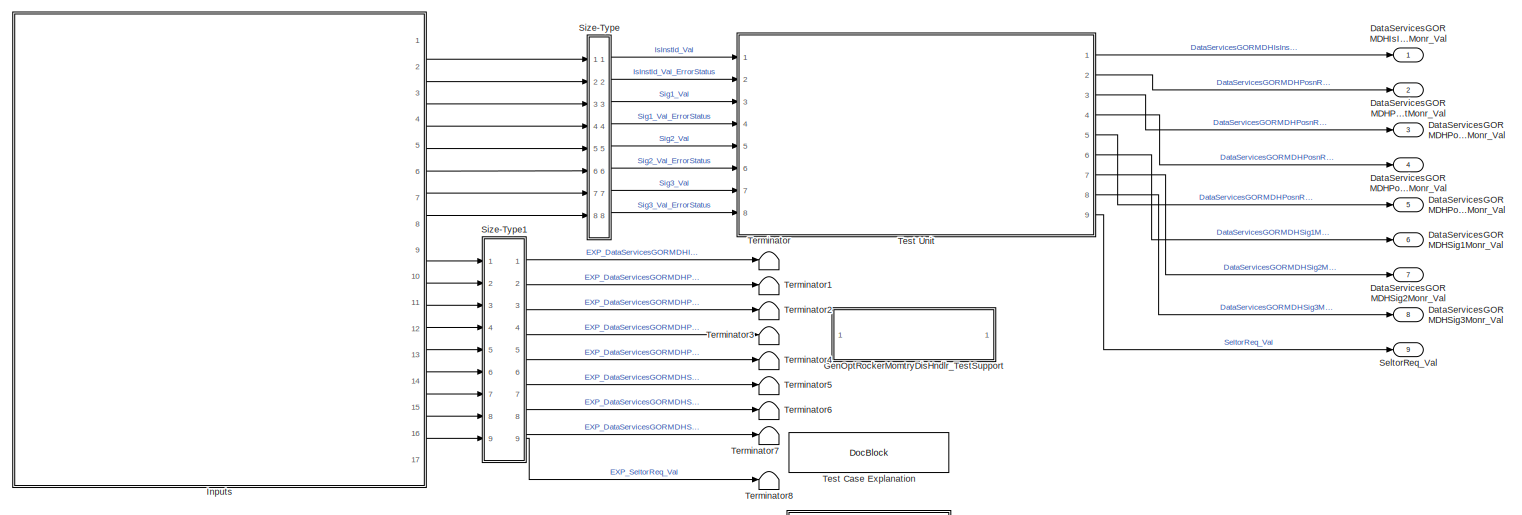
[diagram: root canvas - part 1/2, full width, top band]
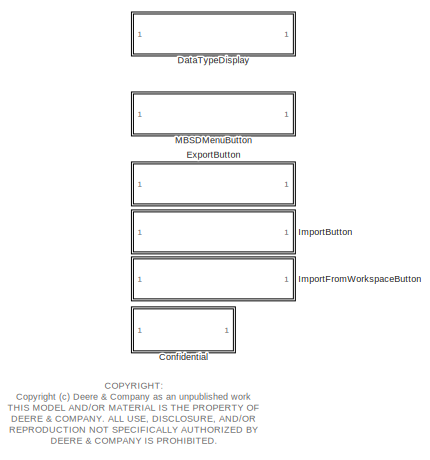
[diagram: root canvas - part 2/2, bottom center region]
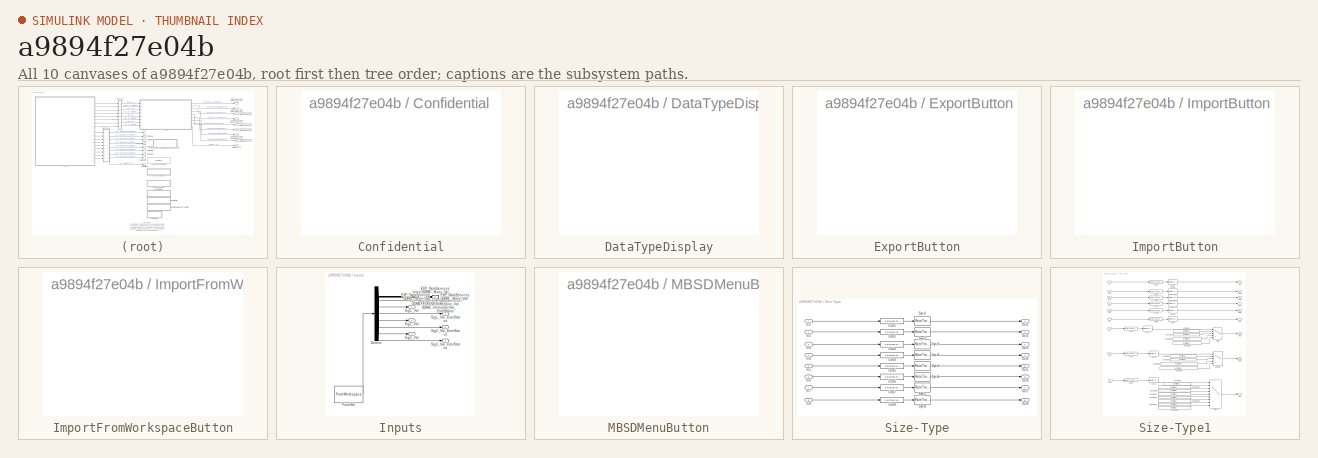
[diagram: thumbnail index - all 10 canvases of the model, root first then tree order]
MODEL slx_a9894f27e04b
KIND model
CONFIG AbsTol = auto
CONFIG EnableMultiTasking = off
CONFIG FixedStep = SAMPLE_TIME_CONFIGSET_0p01_S
CONFIG MaxStep = auto
CONFIG MinStep = auto
CONFIG RelTol = 1e-3
CONFIG SampleTimeConstraint = Unconstrained
CONFIG Solver = FixedStepDiscrete
CONFIG SolverName = FixedStepDiscrete
CONFIG StartTime = 0.0
CONFIG StopTime = inf
BLOCK [SubSystem] Confidential
  Ports = []
  RequestExecContextInheritance = off
  Variant = off
BLOCK [Outport] DataServicesGORMDHIsInstldMonr_Val
  IconDisplay = Port number
  OutDataTypeStr = Enum: DiagBool
  PortDimensions = 1
  SamplingMode = Sample based
  SignalType = real
BLOCK [Outport] DataServicesGORMDHPosnReqSeldStMonr_Val
  IconDisplay = Port number
  OutDataTypeStr = Enum: EnCtrlDisSt
  Port = 2
  PortDimensions = 1
  SamplingMode = Sample based
  SignalType = real
BLOCK [Outport] DataServicesGORMDHPosnReqSelnMonr_Val
  IconDisplay = Port number
  OutDataTypeStr = Enum: EnCtrlSeln
  Port = 3
  PortDimensions = 1
  SamplingMode = Sample based
  SignalType = real
BLOCK [Outport] DataServicesGORMDHPosnReqStsMonr_Val
  IconDisplay = Port number
  OutDataTypeStr = Enum: EnCtrlSts
  Port = 4
  PortDimensions = 1
  SamplingMode = Sample based
  SignalType = real
BLOCK [Outport] DataServicesGORMDHPosnReqTransMonr_Val
  IconDisplay = Port number
  OutDataTypeStr = CntAbsMod
  Port = 5
  PortDimensions = 1
  SamplingMode = Sample based
  SignalType = real
BLOCK [Outport] DataServicesGORMDHSig1Monr_Val
  IconDisplay = Port number
  OutDataTypeStr = Enum: DiagBool
  Port = 6
  PortDimensions = 1
  SamplingMode = Sample based
  SignalType = real
BLOCK [Outport] DataServicesGORMDHSig2Monr_Val
  IconDisplay = Port number
  OutDataTypeStr = Enum: DiagBool
  Port = 7
  PortDimensions = 1
  SamplingMode = Sample based
  SignalType = real
BLOCK [Outport] DataServicesGORMDHSig3Monr_Val
  IconDisplay = Port number
  OutDataTypeStr = Enum: DiagBool
  Port = 8
  PortDimensions = 1
  SamplingMode = Sample based
  SignalType = real
BLOCK [SubSystem] DataTypeDisplay
  LoadFcn = set_param(gcb,'AttributesFormatString','');
  OpenFcn = set_param(gcb,'AttributesFormatString',findModelIDT(gcs));
  Ports = []
  RequestExecContextInheritance = off
  StartFcn = set_param(gcb,'AttributesFormatString','');
  Variant = off
BLOCK [SubSystem] ExportButton
  LoadFcn = set_param(gcb,'AttributesFormatString','');
  OpenFcn = JD.Model.AddImportExportSwitch.PerformExport(gcs)
  Ports = []
  RequestExecContextInheritance = off
  StartFcn = set_param(gcb,'AttributesFormatString','');
  Variant = off
BLOCK [ModelReference] GenOptRockerMomtryDisHndlr_TestSupport
  ModelNameDialog = GenOptRockerMomtryDisHndlr_TestSupport
  ModelReferenceVersion = 1.1
  Ports = []
  Variant = off
BLOCK [SubSystem] ImportButton
  LoadFcn = set_param(gcb,'AttributesFormatString','');
  OpenFcn = JD.Model.AddImportExportSwitch.PerformImport(gcs)
  Ports = []
  RequestExecContextInheritance = off
  StartFcn = set_param(gcb,'AttributesFormatString','');
  Variant = off
BLOCK [SubSystem] ImportFromWorkspaceButton
  LoadFcn = set_param(gcb,'AttributesFormatString','');
  OpenFcn = JD.Model.AddImportExportSwitch.PerformImportfromWorkspace(gcs)
  Ports = []
  RequestExecContextInheritance = off
  StartFcn = set_param(gcb,'AttributesFormatString','');
  Variant = off
BLOCK [SubSystem] Inputs
  ClipboardFcn = sigbuilder_block('clipboard');
  CloseFcn = sigbuilder_block('close');
  ContinueFcn = sigbuilder_block('continue');
  CopyFcn = sigbuilder_block('copy');
  DeleteFcn = sigbuilder_block('delete');
  LoadFcn = sigbuilder_block('load');
  MaskHideContents = on
  ModelCloseFcn = sigbuilder_block('modelClose');
  NameChangeFcn = sigbuilder_block('namechange');
  OpenFcn = sigbuilder_block('open',[360.75 33 681.75 578.25 ]);
  PauseFcn = sigbuilder_block('pause');
  Ports = [0, 17]
  PreSaveFcn = sigbuilder_block('preSave');
  RequestExecContextInheritance = off
  StartFcn = sigbuilder_block('start');
  StopFcn = sigbuilder_block('stop');
  Tag = STV Subsys
  Variant = off
BLOCK [Demux] Inputs/Demux
  Outputs = 17
  Ports = [1, 17]
  Tag = STV Demux
BLOCK [Outport] Inputs/EXP_DataServicesGORMDHIsInstldMonr_Val
  IconDisplay = Port number
  Port = 9
  Tag = STV Outport
BLOCK [Outport] Inputs/EXP_DataServicesGORMDHPosnReqSeldStMonr_Val
  IconDisplay = Port number
  Port = 10
  Tag = STV Outport
BLOCK [Outport] Inputs/EXP_DataServicesGORMDHPosnReqSelnMonr_Val
  IconDisplay = Port number
  Port = 11
  Tag = STV Outport
BLOCK [Outport] Inputs/EXP_DataServicesGORMDHPosnReqStsMonr_Val
  IconDisplay = Port number
  Port = 12
  Tag = STV Outport
BLOCK [Outport] Inputs/EXP_DataServicesGORMDHPosnReqTransMonr_Val
  IconDisplay = Port number
  Port = 13
  Tag = STV Outport
BLOCK [Outport] Inputs/EXP_DataServicesGORMDHSig1Monr_Val
  IconDisplay = Port number
  Port = 14
  Tag = STV Outport
BLOCK [Outport] Inputs/EXP_DataServicesGORMDHSig2Monr_Val
  IconDisplay = Port number
  Port = 15
  Tag = STV Outport
BLOCK [Outport] Inputs/EXP_DataServicesGORMDHSig3Monr_Val
  IconDisplay = Port number
  Port = 16
  Tag = STV Outport
BLOCK [Outport] Inputs/EXP_SeltorReq_Val
  IconDisplay = Port number
  Port = 17
  Tag = STV Outport
BLOCK [FromWorkspace] Inputs/FromWs
  SampleTime = 0
  Tag = STV FromWs
  VariableName = tuvar
BLOCK [Outport] Inputs/IsInstld_Val
  IconDisplay = Port number
  Tag = STV Outport
BLOCK [Outport] Inputs/IsInstld_Val_ErrorStatus
  IconDisplay = Port number
  Port = 2
  Tag = STV Outport
BLOCK [Outport] Inputs/Sig1_Val
  IconDisplay = Port number
  Port = 3
  Tag = STV Outport
BLOCK [Outport] Inputs/Sig1_Val_ErrorStatus
  IconDisplay = Port number
  Port = 4
  Tag = STV Outport
BLOCK [Outport] Inputs/Sig2_Val
  IconDisplay = Port number
  Port = 5
  Tag = STV Outport
BLOCK [Outport] Inputs/Sig2_Val_ErrorStatus
  IconDisplay = Port number
  Port = 6
  Tag = STV Outport
BLOCK [Outport] Inputs/Sig3_Val
  IconDisplay = Port number
  Port = 7
  Tag = STV Outport
BLOCK [Outport] Inputs/Sig3_Val_ErrorStatus
  IconDisplay = Port number
  Port = 8
  Tag = STV Outport
BLOCK [SubSystem] MBSDMenuButton
  OpenFcn = JD_MBSDMenu
  Ports = []
  RequestExecContextInheritance = off
  Variant = off
BLOCK [Outport] SeltorReq_Val
  BusOutputAsStruct = on
  IconDisplay = Port number
  OutDataTypeStr = Bus: RecCtrlSelr
  Port = 9
  PortDimensions = 1
  SamplingMode = Sample based
  SignalType = real
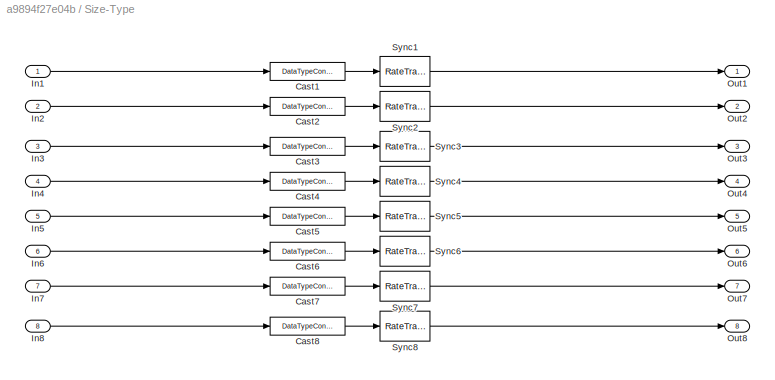
BLOCK [SubSystem] Size-Type
  Ports = [8, 8]
  RequestExecContextInheritance = off
  Variant = off
BLOCK [DataTypeConversion] Size-Type/Cast1
  RndMeth = Nearest
BLOCK [DataTypeConversion] Size-Type/Cast2
  RndMeth = Nearest
BLOCK [DataTypeConversion] Size-Type/Cast3
  RndMeth = Nearest
BLOCK [DataTypeConversion] Size-Type/Cast4
  RndMeth = Nearest
BLOCK [DataTypeConversion] Size-Type/Cast5
  RndMeth = Nearest
BLOCK [DataTypeConversion] Size-Type/Cast6
  RndMeth = Nearest
BLOCK [DataTypeConversion] Size-Type/Cast7
  RndMeth = Nearest
BLOCK [DataTypeConversion] Size-Type/Cast8
  RndMeth = Nearest
BLOCK [Inport] Size-Type/In1
  IconDisplay = Port number
BLOCK [Inport] Size-Type/In2
  IconDisplay = Port number
  Port = 2
BLOCK [Inport] Size-Type/In3
  IconDisplay = Port number
  Port = 3
BLOCK [Inport] Size-Type/In4
  IconDisplay = Port number
  Port = 4
BLOCK [Inport] Size-Type/In5
  IconDisplay = Port number
  Port = 5
BLOCK [Inport] Size-Type/In6
  IconDisplay = Port number
  Port = 6
BLOCK [Inport] Size-Type/In7
  IconDisplay = Port number
  Port = 7
BLOCK [Inport] Size-Type/In8
  IconDisplay = Port number
  Port = 8
BLOCK [Outport] Size-Type/Out1
  IconDisplay = Port number
BLOCK [Outport] Size-Type/Out2
  IconDisplay = Port number
  Port = 2
BLOCK [Outport] Size-Type/Out3
  IconDisplay = Port number
  Port = 3
BLOCK [Outport] Size-Type/Out4
  IconDisplay = Port number
  Port = 4
BLOCK [Outport] Size-Type/Out5
  IconDisplay = Port number
  Port = 5
BLOCK [Outport] Size-Type/Out6
  IconDisplay = Port number
  Port = 6
BLOCK [Outport] Size-Type/Out7
  IconDisplay = Port number
  Port = 7
BLOCK [Outport] Size-Type/Out8
  IconDisplay = Port number
  Port = 8
BLOCK [RateTransition] Size-Type/Sync1
  OutPortSampleTime = [0.01,0]
  OutPortSampleTimeOpt = Inherit
BLOCK [RateTransition] Size-Type/Sync2
  OutPortSampleTime = [0.01,0]
  OutPortSampleTimeOpt = Inherit
BLOCK [RateTransition] Size-Type/Sync3
  OutPortSampleTime = [0.01,0]
  OutPortSampleTimeOpt = Inherit
BLOCK [RateTransition] Size-Type/Sync4
  OutPortSampleTime = [0.01,0]
  OutPortSampleTimeOpt = Inherit
BLOCK [RateTransition] Size-Type/Sync5
  OutPortSampleTime = [0.01,0]
  OutPortSampleTimeOpt = Inherit
BLOCK [RateTransition] Size-Type/Sync6
  OutPortSampleTime = [0.01,0]
  OutPortSampleTimeOpt = Inherit
BLOCK [RateTransition] Size-Type/Sync7
  OutPortSampleTime = [0.01,0]
  OutPortSampleTimeOpt = Inherit
BLOCK [RateTransition] Size-Type/Sync8
  OutPortSampleTime = [0.01,0]
  OutPortSampleTimeOpt = Inherit
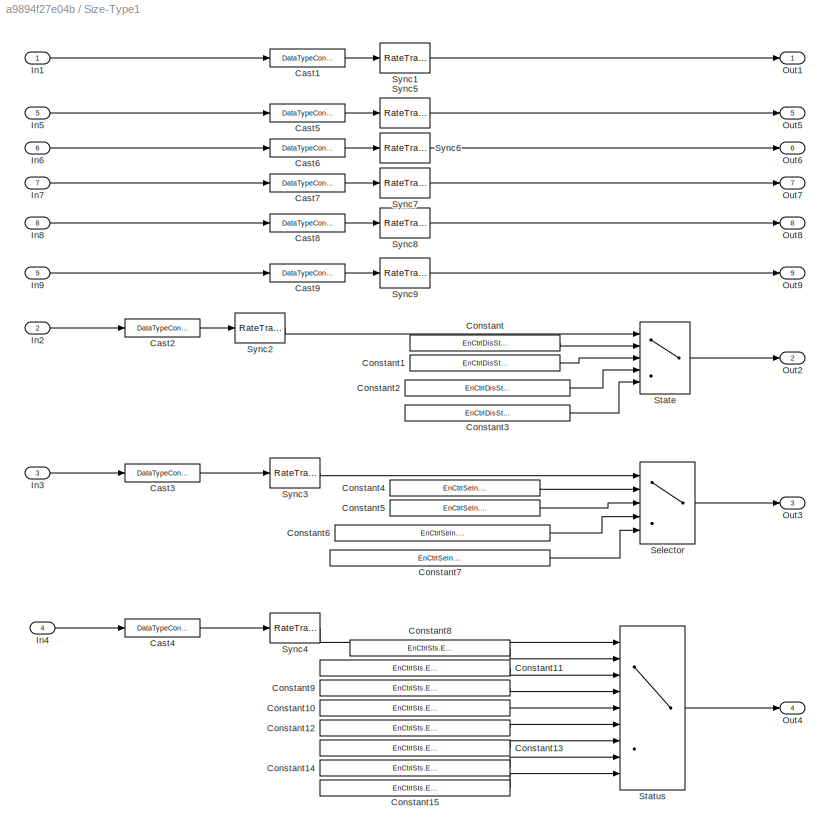
BLOCK [SubSystem] Size-Type1
  Ports = [9, 9]
  RequestExecContextInheritance = off
  Variant = off
BLOCK [MultiPortSwitch] Size-Type1/ State
  DataPortIndices = {EnCtrlDisSt.EnCtrlDisStIsOff, EnCtrlDisSt.EnCtrlDisStIsOn, EnCtrlDisSt.EnCtrlDisStIsHoldSho, EnCtrlDisSt.EnCtrlDisStIsHoldLong}
  DataPortOrder = Zero-based contiguous
  InputSameDT = off
  Inputs = 4
  Ports = [5, 1]
  SaturateOnIntegerOverflow = off
BLOCK [DataTypeConversion] Size-Type1/Cast1
  RndMeth = Nearest
BLOCK [DataTypeConversion] Size-Type1/Cast2
  RndMeth = Nearest
BLOCK [DataTypeConversion] Size-Type1/Cast3
  RndMeth = Nearest
BLOCK [DataTypeConversion] Size-Type1/Cast4
  RndMeth = Nearest
BLOCK [DataTypeConversion] Size-Type1/Cast5
  RndMeth = Nearest
BLOCK [DataTypeConversion] Size-Type1/Cast6
  RndMeth = Nearest
BLOCK [DataTypeConversion] Size-Type1/Cast7
  RndMeth = Nearest
BLOCK [DataTypeConversion] Size-Type1/Cast8
  RndMeth = Nearest
BLOCK [DataTypeConversion] Size-Type1/Cast9
  RndMeth = Nearest
BLOCK [Constant] Size-Type1/Constant
  OutDataTypeStr = Enum: EnCtrlDisSt
  Value = EnCtrlDisSt.EnCtrlDisStIsOff
BLOCK [Constant] Size-Type1/Constant1
  OutDataTypeStr = Enum: EnCtrlDisSt
  Value = EnCtrlDisSt.EnCtrlDisStIsOn
BLOCK [Constant] Size-Type1/Constant10
  OutDataTypeStr = Enum: EnCtrlSts
  Value = EnCtrlSts.EnCtrlStsIsMplSelrs
BLOCK [Constant] Size-Type1/Constant11
  OutDataTypeStr = Enum: EnCtrlSts
  Value = EnCtrlSts.EnCtrlStsIsDegraded
BLOCK [Constant] Size-Type1/Constant12
  OutDataTypeStr = Enum: EnCtrlSts
  Value = EnCtrlSts.EnCtrlStsIsNotCal
BLOCK [Constant] Size-Type1/Constant13
  OutDataTypeStr = Enum: EnCtrlSts
  Value = EnCtrlSts.EnCtrlStsIsNotAvl
BLOCK [Constant] Size-Type1/Constant14
  OutDataTypeStr = Enum: EnCtrlSts
  Value = EnCtrlSts.EnCtrlStsIsErr
BLOCK [Constant] Size-Type1/Constant15
  OutDataTypeStr = Enum: EnCtrlSts
  Value = EnCtrlSts.EnCtrlStsIsNeedsCal
BLOCK [Constant] Size-Type1/Constant2
  OutDataTypeStr = Enum: EnCtrlDisSt
  Value = EnCtrlDisSt.EnCtrlDisStIsHoldSho
BLOCK [Constant] Size-Type1/Constant3
  OutDataTypeStr = Enum: EnCtrlDisSt
  Value = EnCtrlDisSt.EnCtrlDisStIsHoldLong
BLOCK [Constant] Size-Type1/Constant4
  OutDataTypeStr = Enum: EnCtrlSeln
  Value = EnCtrlSeln.EnCtrlSelnIsNone
BLOCK [Constant] Size-Type1/Constant5
  OutDataTypeStr = Enum: EnCtrlSeln
  Value = EnCtrlSeln.EnCtrlSelnIsLock
BLOCK [Constant] Size-Type1/Constant6
  OutDataTypeStr = Enum: EnCtrlSeln
  Value = EnCtrlSeln.EnCtrlSelnIsFwdUpRiInnrDetent
BLOCK [Constant] Size-Type1/Constant7
  OutDataTypeStr = Enum: EnCtrlSeln
  Value = EnCtrlSeln.EnCtrlSelnIsBackwDwnLeInnrDetent
BLOCK [Constant] Size-Type1/Constant8
  OutDataTypeStr = Enum: EnCtrlSts
  Value = EnCtrlSts.EnCtrlStsIsNormative
BLOCK [Constant] Size-Type1/Constant9
  OutDataTypeStr = Enum: EnCtrlSts
  Value = EnCtrlSts.EnCtrlStsIsNoComputedData
BLOCK [Inport] Size-Type1/In1
  IconDisplay = Port number
BLOCK [Inport] Size-Type1/In2
  IconDisplay = Port number
  Port = 2
BLOCK [Inport] Size-Type1/In3
  IconDisplay = Port number
  Port = 3
BLOCK [Inport] Size-Type1/In4
  IconDisplay = Port number
  Port = 4
BLOCK [Inport] Size-Type1/In5
  IconDisplay = Port number
  Port = 5
BLOCK [Inport] Size-Type1/In6
  IconDisplay = Port number
  Port = 6
BLOCK [Inport] Size-Type1/In7
  IconDisplay = Port number
  Port = 7
BLOCK [Inport] Size-Type1/In8
  IconDisplay = Port number
  Port = 8
BLOCK [Inport] Size-Type1/In9
  IconDisplay = Port number
  Port = 9
BLOCK [Outport] Size-Type1/Out1
  IconDisplay = Port number
BLOCK [Outport] Size-Type1/Out2
  IconDisplay = Port number
  Port = 2
BLOCK [Outport] Size-Type1/Out3
  IconDisplay = Port number
  Port = 3
BLOCK [Outport] Size-Type1/Out4
  IconDisplay = Port number
  Port = 4
BLOCK [Outport] Size-Type1/Out5
  IconDisplay = Port number
  Port = 5
BLOCK [Outport] Size-Type1/Out6
  IconDisplay = Port number
  Port = 6
BLOCK [Outport] Size-Type1/Out7
  IconDisplay = Port number
  Port = 7
BLOCK [Outport] Size-Type1/Out8
  IconDisplay = Port number
  Port = 8
BLOCK [Outport] Size-Type1/Out9
  IconDisplay = Port number
  Port = 9
BLOCK [MultiPortSwitch] Size-Type1/Selector
  DataPortIndices = [EnCtrlSeln.EnCtrlSelnIsNone, EnCtrlSeln.EnCtrlSelnIsLock, EnCtrlSeln.EnCtrlSelnIsFwdUpRiInnrDetent, EnCtrlSeln.EnCtrlSelnIsBackwDwnLeInnrDetent]
  DataPortOrder = Zero-based contiguous
  InputSameDT = off
  Inputs = 4
  Ports = [5, 1]
  SaturateOnIntegerOverflow = off
BLOCK [MultiPortSwitch] Size-Type1/Status
  DataPortIndices = [EnCtrlSts.EnCtrlStsIsNormative, EnCtrlSts.EnCtrlStsIsDegraded, EnCtrlSts.EnCtrlStsIsNoComputedData, EnCtrlSts.EnCtrlStsIsMplSelrs, EnCtrlSts.EnCtrlStsIsNotCal, EnCtrlSts.EnCtrlStsIsNotAvl, EnCtrlSts.EnCtrlStsIsErr, EnCtrlSts.EnCtrlStsIsNeedsCal]
  DataPortOrder = Zero-based contiguous
  InputSameDT = off
  Inputs = 8
  OutDataTypeStr = Inherit: Inherit via back propagation
  Ports = [9, 1]
  SaturateOnIntegerOverflow = off
BLOCK [RateTransition] Size-Type1/Sync1
  OutPortSampleTime = [0.01,0]
  OutPortSampleTimeOpt = Inherit
BLOCK [RateTransition] Size-Type1/Sync2
  OutPortSampleTime = [0.01,0]
  OutPortSampleTimeOpt = Inherit
BLOCK [RateTransition] Size-Type1/Sync3
  OutPortSampleTime = [0.01,0]
  OutPortSampleTimeOpt = Inherit
BLOCK [RateTransition] Size-Type1/Sync4
  OutPortSampleTime = [0.01,0]
  OutPortSampleTimeOpt = Inherit
BLOCK [RateTransition] Size-Type1/Sync5
  OutPortSampleTime = [0.01,0]
  OutPortSampleTimeOpt = Inherit
BLOCK [RateTransition] Size-Type1/Sync6
  OutPortSampleTime = [0.01,0]
  OutPortSampleTimeOpt = Inherit
BLOCK [RateTransition] Size-Type1/Sync7
  OutPortSampleTime = [0.01,0]
  OutPortSampleTimeOpt = Inherit
BLOCK [RateTransition] Size-Type1/Sync8
  OutPortSampleTime = [0.01,0]
  OutPortSampleTimeOpt = Inherit
BLOCK [RateTransition] Size-Type1/Sync9
  OutPortSampleTime = [0.01,0]
  OutPortSampleTimeOpt = Inherit
BLOCK [Terminator] Terminator
BLOCK [Terminator] Terminator1
BLOCK [Terminator] Terminator2
BLOCK [Terminator] Terminator3
BLOCK [Terminator] Terminator4
BLOCK [Terminator] Terminator5
BLOCK [Terminator] Terminator6
BLOCK [Terminator] Terminator7
BLOCK [Terminator] Terminator8
BLOCK [Reference] Test Case Explanation  REF=simulink/Model-Wide
Utilities/DocBlock
  Ports = []
  SourceBlock = simulink/Model-Wide\nUtilities/DocBlock
  SourceProductBaseCode = SL
  SourceProductName = Simulink
  SourceType = DocBlock
  UserDataPersistent = on
BLOCK [ModelReference] Test Unit
  ModelNameDialog = GenOptRockerMomtryDisHndlr
  ModelReferenceVersion = 1.51
  Ports = [8, 9]
  Variant = off
ANNOTATION (root): <copyright redacted>
LINE Inputs/Demux:1 -> Inputs/IsInstld_Val:1
LINE Inputs/Demux:10 -> Inputs/EXP_DataServicesGORMDHPosnReqSeldStMonr_Val:1
LINE Inputs/Demux:11 -> Inputs/EXP_DataServicesGORMDHPosnReqSelnMonr_Val:1
LINE Inputs/Demux:12 -> Inputs/EXP_DataServicesGORMDHPosnReqStsMonr_Val:1
LINE Inputs/Demux:13 -> Inputs/EXP_DataServicesGORMDHPosnReqTransMonr_Val:1
LINE Inputs/Demux:14 -> Inputs/EXP_DataServicesGORMDHSig1Monr_Val:1
LINE Inputs/Demux:15 -> Inputs/EXP_DataServicesGORMDHSig2Monr_Val:1
LINE Inputs/Demux:16 -> Inputs/EXP_DataServicesGORMDHSig3Monr_Val:1
LINE Inputs/Demux:17 -> Inputs/EXP_SeltorReq_Val:1
LINE Inputs/Demux:2 -> Inputs/IsInstld_Val_ErrorStatus:1
LINE Inputs/Demux:3 -> Inputs/Sig1_Val:1
LINE Inputs/Demux:4 -> Inputs/Sig1_Val_ErrorStatus:1
LINE Inputs/Demux:5 -> Inputs/Sig2_Val:1
LINE Inputs/Demux:6 -> Inputs/Sig2_Val_ErrorStatus:1
LINE Inputs/Demux:7 -> Inputs/Sig3_Val:1
LINE Inputs/Demux:8 -> Inputs/Sig3_Val_ErrorStatus:1
LINE Inputs/Demux:9 -> Inputs/EXP_DataServicesGORMDHIsInstldMonr_Val:1
LINE Inputs/FromWs:1 -> Inputs/Demux:1
LINE Inputs:1 -> Size-Type:1
LINE Inputs:10 -> Size-Type1:2
LINE Inputs:11 -> Size-Type1:3
LINE Inputs:12 -> Size-Type1:4
LINE Inputs:13 -> Size-Type1:5
LINE Inputs:14 -> Size-Type1:6
LINE Inputs:15 -> Size-Type1:7
LINE Inputs:16 -> Size-Type1:8
LINE Inputs:17 -> Size-Type1:9
LINE Inputs:2 -> Size-Type:2
LINE Inputs:3 -> Size-Type:3
LINE Inputs:4 -> Size-Type:4
LINE Inputs:5 -> Size-Type:5
LINE Inputs:6 -> Size-Type:6
LINE Inputs:7 -> Size-Type:7
LINE Inputs:8 -> Size-Type:8
LINE Inputs:9 -> Size-Type1:1
LINE Size-Type/Cast1:1 -> Size-Type/Sync1:1
LINE Size-Type/Cast2:1 -> Size-Type/Sync2:1
LINE Size-Type/Cast3:1 -> Size-Type/Sync3:1
LINE Size-Type/Cast4:1 -> Size-Type/Sync4:1
LINE Size-Type/Cast5:1 -> Size-Type/Sync5:1
LINE Size-Type/Cast6:1 -> Size-Type/Sync6:1
LINE Size-Type/Cast7:1 -> Size-Type/Sync7:1
LINE Size-Type/Cast8:1 -> Size-Type/Sync8:1
LINE Size-Type/In1:1 -> Size-Type/Cast1:1
LINE Size-Type/In2:1 -> Size-Type/Cast2:1
LINE Size-Type/In3:1 -> Size-Type/Cast3:1
LINE Size-Type/In4:1 -> Size-Type/Cast4:1
LINE Size-Type/In5:1 -> Size-Type/Cast5:1
LINE Size-Type/In6:1 -> Size-Type/Cast6:1
LINE Size-Type/In7:1 -> Size-Type/Cast7:1
LINE Size-Type/In8:1 -> Size-Type/Cast8:1
LINE Size-Type/Sync1:1 -> Size-Type/Out1:1
LINE Size-Type/Sync2:1 -> Size-Type/Out2:1
LINE Size-Type/Sync3:1 -> Size-Type/Out3:1
LINE Size-Type/Sync4:1 -> Size-Type/Out4:1
LINE Size-Type/Sync5:1 -> Size-Type/Out5:1
LINE Size-Type/Sync6:1 -> Size-Type/Out6:1
LINE Size-Type/Sync7:1 -> Size-Type/Out7:1
LINE Size-Type/Sync8:1 -> Size-Type/Out8:1
LINE Size-Type1/ State:1 -> Size-Type1/Out2:1
LINE Size-Type1/Cast1:1 -> Size-Type1/Sync1:1
LINE Size-Type1/Cast2:1 -> Size-Type1/Sync2:1
LINE Size-Type1/Cast3:1 -> Size-Type1/Sync3:1
LINE Size-Type1/Cast4:1 -> Size-Type1/Sync4:1
LINE Size-Type1/Cast5:1 -> Size-Type1/Sync5:1
LINE Size-Type1/Cast6:1 -> Size-Type1/Sync6:1
LINE Size-Type1/Cast7:1 -> Size-Type1/Sync7:1
LINE Size-Type1/Cast8:1 -> Size-Type1/Sync8:1
LINE Size-Type1/Cast9:1 -> Size-Type1/Sync9:1
LINE Size-Type1/Constant10:1 -> Size-Type1/Status:5
LINE Size-Type1/Constant11:1 -> Size-Type1/Status:3
LINE Size-Type1/Constant12:1 -> Size-Type1/Status:6
LINE Size-Type1/Constant13:1 -> Size-Type1/Status:7
LINE Size-Type1/Constant14:1 -> Size-Type1/Status:8
LINE Size-Type1/Constant15:1 -> Size-Type1/Status:9
LINE Size-Type1/Constant1:1 -> Size-Type1/ State:3
LINE Size-Type1/Constant2:1 -> Size-Type1/ State:4
LINE Size-Type1/Constant3:1 -> Size-Type1/ State:5
LINE Size-Type1/Constant4:1 -> Size-Type1/Selector:2
LINE Size-Type1/Constant5:1 -> Size-Type1/Selector:3
LINE Size-Type1/Constant6:1 -> Size-Type1/Selector:4
LINE Size-Type1/Constant7:1 -> Size-Type1/Selector:5
LINE Size-Type1/Constant8:1 -> Size-Type1/Status:2
LINE Size-Type1/Constant9:1 -> Size-Type1/Status:4
LINE Size-Type1/Constant:1 -> Size-Type1/ State:2
LINE Size-Type1/In1:1 -> Size-Type1/Cast1:1
LINE Size-Type1/In2:1 -> Size-Type1/Cast2:1
LINE Size-Type1/In3:1 -> Size-Type1/Cast3:1
LINE Size-Type1/In4:1 -> Size-Type1/Cast4:1
LINE Size-Type1/In5:1 -> Size-Type1/Cast5:1
LINE Size-Type1/In6:1 -> Size-Type1/Cast6:1
LINE Size-Type1/In7:1 -> Size-Type1/Cast7:1
LINE Size-Type1/In8:1 -> Size-Type1/Cast8:1
LINE Size-Type1/In9:1 -> Size-Type1/Cast9:1
LINE Size-Type1/Selector:1 -> Size-Type1/Out3:1
LINE Size-Type1/Status:1 -> Size-Type1/Out4:1
LINE Size-Type1/Sync1:1 -> Size-Type1/Out1:1
LINE Size-Type1/Sync2:1 -> Size-Type1/ State:1
LINE Size-Type1/Sync3:1 -> Size-Type1/Selector:1
LINE Size-Type1/Sync4:1 -> Size-Type1/Status:1
LINE Size-Type1/Sync5:1 -> Size-Type1/Out5:1
LINE Size-Type1/Sync6:1 -> Size-Type1/Out6:1
LINE Size-Type1/Sync7:1 -> Size-Type1/Out7:1
LINE Size-Type1/Sync8:1 -> Size-Type1/Out8:1
LINE Size-Type1/Sync9:1 -> Size-Type1/Out9:1
LINE Size-Type1:1 -> Terminator:1
LINE Size-Type1:2 -> Terminator1:1
LINE Size-Type1:3 -> Terminator2:1
LINE Size-Type1:4 -> Terminator3:1
LINE Size-Type1:5 -> Terminator4:1
LINE Size-Type1:6 -> Terminator5:1
LINE Size-Type1:7 -> Terminator6:1
LINE Size-Type1:8 -> Terminator7:1
LINE Size-Type1:9 -> Terminator8:1
LINE Size-Type:1 -> Test Unit:1
LINE Size-Type:2 -> Test Unit:2
LINE Size-Type:3 -> Test Unit:3
LINE Size-Type:4 -> Test Unit:4
LINE Size-Type:5 -> Test Unit:5
LINE Size-Type:6 -> Test Unit:6
LINE Size-Type:7 -> Test Unit:7
LINE Size-Type:8 -> Test Unit:8
LINE Test Unit:1 -> DataServicesGORMDHIsInstldMonr_Val:1
LINE Test Unit:2 -> DataServicesGORMDHPosnReqSeldStMonr_Val:1
LINE Test Unit:3 -> DataServicesGORMDHPosnReqSelnMonr_Val:1
LINE Test Unit:4 -> DataServicesGORMDHPosnReqStsMonr_Val:1
LINE Test Unit:5 -> DataServicesGORMDHPosnReqTransMonr_Val:1
LINE Test Unit:6 -> DataServicesGORMDHSig1Monr_Val:1
LINE Test Unit:7 -> DataServicesGORMDHSig2Monr_Val:1
LINE Test Unit:8 -> DataServicesGORMDHSig3Monr_Val:1
LINE Test Unit:9 -> SeltorReq_Val:1
